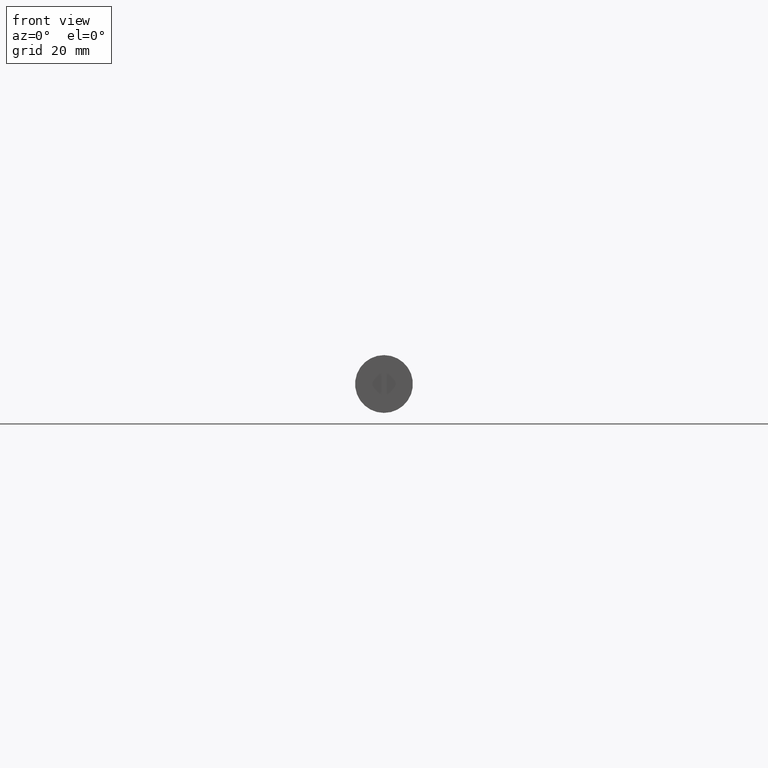
[diagram: clean part render]
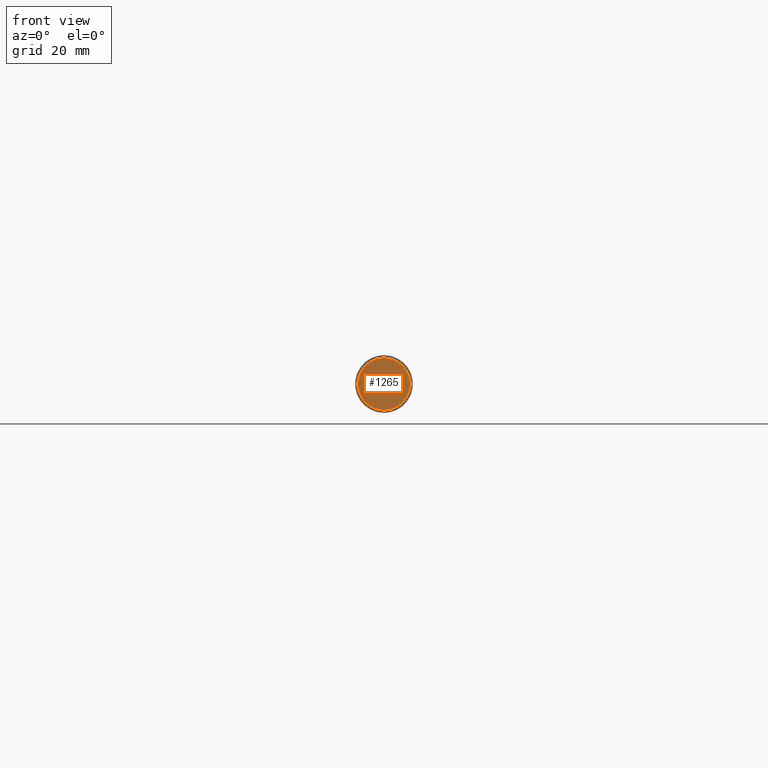
[diagram: same view with one face highlighted and labeled with its STEP entity id]
A machine part, front view. The second image highlights one B-rep face of the part: STEP entity #1265.
In plain terms, the highlighted planar face has unit normal (0, 1, 0).
Its self-contained STEP definition (entity closure, byte-faithful):
#27 = ORIENTED_EDGE ( 'NONE', *, *, #2682, .F. ) ;
#149 = CARTESIAN_POINT ( 'NONE',  ( -6.400000000000000400, 0.0000000000000000000, -2.112515728529184100E-015 ) ) ;
#286 = AXIS2_PLACEMENT_3D ( 'NONE', #4638, #2404, #4606 ) ;
#296 = CARTESIAN_POINT ( 'NONE',  ( 0.0000000000000000000, 0.0000000000000000000, 0.0000000000000000000 ) ) ;
#420 = FACE_BOUND ( 'NONE', #3859, .T. ) ;
#484 = DIRECTION ( 'NONE',  ( 0.0000000000000000000, 0.0000000000000000000, 1.000000000000000000 ) ) ;
#500 = EDGE_LOOP ( 'NONE', ( #3402, #27 ) ) ;
#504 = CIRCLE ( 'NONE', #2323, 0.4999999999999997800 ) ;
#508 = DIRECTION ( 'NONE',  ( -0.0000000000000000000, -1.000000000000000000, -0.0000000000000000000 ) ) ;
#525 = CARTESIAN_POINT ( 'NONE',  ( -6.400000000000000400, 0.0000000000000000000, 0.4999999999999977200 ) ) ;
#576 = VERTEX_POINT ( 'NONE', #1453 ) ;
#662 = AXIS2_PLACEMENT_3D ( 'NONE', #2499, #3705, #2135 ) ;
#727 = DIRECTION ( 'NONE',  ( 0.0000000000000000000, 1.000000000000000000, 0.0000000000000000000 ) ) ;
#829 = AXIS2_PLACEMENT_3D ( 'NONE', #296, #727, #2940 ) ;
#1004 = CARTESIAN_POINT ( 'NONE',  ( 0.0000000000000000000, 0.0000000000000000000, 0.0000000000000000000 ) ) ;
#1022 = CARTESIAN_POINT ( 'NONE',  ( 6.400000000000000400, 0.0000000000000000000, 0.5000000000000002200 ) ) ;
#1032 = EDGE_CURVE ( 'NONE', #576, #2442, #1664, .T. ) ;
#1136 = FACE_BOUND ( 'NONE', #500, .T. ) ;
#1237 = DIRECTION ( 'NONE',  ( -0.0000000000000000000, -1.000000000000000000, -0.0000000000000000000 ) ) ;
#1265 = ADVANCED_FACE ( 'NONE', ( #420, #3481, #1136 ), #4383, .F. ) ;
#1427 = EDGE_CURVE ( 'NONE', #4512, #3391, #3829, .T. ) ;
#1453 = CARTESIAN_POINT ( 'NONE',  ( 1.200153863164406500E-015, 0.0000000000000000000, 9.800000000000002500 ) ) ;
#1503 = CARTESIAN_POINT ( 'NONE',  ( -6.400000000000000400, 0.0000000000000000000, -0.5000000000000018900 ) ) ;
#1620 = VERTEX_POINT ( 'NONE', #3841 ) ;
#1635 = AXIS2_PLACEMENT_3D ( 'NONE', #2767, #508, #2459 ) ;
#1664 = CIRCLE ( 'NONE', #829, 9.800000000000002500 ) ;
#1671 = DIRECTION ( 'NONE',  ( -0.0000000000000000000, -1.000000000000000000, -0.0000000000000000000 ) ) ;
#1682 = EDGE_CURVE ( 'NONE', #3391, #4512, #504, .T. ) ;
#1755 = EDGE_CURVE ( 'NONE', #2442, #576, #3738, .T. ) ;
#2135 = DIRECTION ( 'NONE',  ( 0.0000000000000000000, 0.0000000000000000000, 1.000000000000000000 ) ) ;
#2249 = VERTEX_POINT ( 'NONE', #1022 ) ;
#2323 = AXIS2_PLACEMENT_3D ( 'NONE', #149, #1671, #3888 ) ;
#2373 = CIRCLE ( 'NONE', #1635, 0.5000000000000007800 ) ;
#2404 = DIRECTION ( 'NONE',  ( 0.0000000000000000000, 1.000000000000000000, 0.0000000000000000000 ) ) ;
#2442 = VERTEX_POINT ( 'NONE', #4439 ) ;
#2459 = DIRECTION ( 'NONE',  ( 0.0000000000000000000, 0.0000000000000000000, 1.000000000000000000 ) ) ;
#2499 = CARTESIAN_POINT ( 'NONE',  ( 6.400000000000000400, 0.0000000000000000000, -5.449678256205724700E-016 ) ) ;
#2682 = EDGE_CURVE ( 'NONE', #1620, #2249, #2373, .T. ) ;
#2767 = CARTESIAN_POINT ( 'NONE',  ( 6.400000000000000400, 0.0000000000000000000, -5.449678256205724700E-016 ) ) ;
#2940 = DIRECTION ( 'NONE',  ( 0.0000000000000000000, 0.0000000000000000000, 1.000000000000000000 ) ) ;
#3204 = EDGE_CURVE ( 'NONE', #2249, #1620, #3884, .T. ) ;
#3391 = VERTEX_POINT ( 'NONE', #1503 ) ;
#3402 = ORIENTED_EDGE ( 'NONE', *, *, #3204, .F. ) ;
#3412 = ORIENTED_EDGE ( 'NONE', *, *, #1032, .F. ) ;
#3447 = ORIENTED_EDGE ( 'NONE', *, *, #1755, .F. ) ;
#3474 = CARTESIAN_POINT ( 'NONE',  ( -6.400000000000000400, 0.0000000000000000000, -2.112515728529184100E-015 ) ) ;
#3481 = FACE_OUTER_BOUND ( 'NONE', #4666, .T. ) ;
#3657 = DIRECTION ( 'NONE',  ( 0.0000000000000000000, 1.000000000000000000, 0.0000000000000000000 ) ) ;
#3705 = DIRECTION ( 'NONE',  ( -0.0000000000000000000, -1.000000000000000000, -0.0000000000000000000 ) ) ;
#3738 = CIRCLE ( 'NONE', #286, 9.800000000000002500 ) ;
#3829 = CIRCLE ( 'NONE', #4228, 0.4999999999999997800 ) ;
#3841 = CARTESIAN_POINT ( 'NONE',  ( 6.400000000000000400, 0.0000000000000000000, -0.5000000000000013300 ) ) ;
#3844 = ORIENTED_EDGE ( 'NONE', *, *, #1427, .F. ) ;
#3859 = EDGE_LOOP ( 'NONE', ( #3844, #4041 ) ) ;
#3884 = CIRCLE ( 'NONE', #662, 0.5000000000000007800 ) ;
#3888 = DIRECTION ( 'NONE',  ( 0.0000000000000000000, 0.0000000000000000000, 1.000000000000000000 ) ) ;
#4041 = ORIENTED_EDGE ( 'NONE', *, *, #1682, .F. ) ;
#4228 = AXIS2_PLACEMENT_3D ( 'NONE', #3474, #1237, #484 ) ;
#4383 = PLANE ( 'NONE',  #4547 ) ;
#4439 = CARTESIAN_POINT ( 'NONE',  ( 0.0000000000000000000, 0.0000000000000000000, -9.800000000000002500 ) ) ;
#4512 = VERTEX_POINT ( 'NONE', #525 ) ;
#4547 = AXIS2_PLACEMENT_3D ( 'NONE', #1004, #3657, #4793 ) ;
#4606 = DIRECTION ( 'NONE',  ( 0.0000000000000000000, 0.0000000000000000000, 1.000000000000000000 ) ) ;
#4638 = CARTESIAN_POINT ( 'NONE',  ( 0.0000000000000000000, 0.0000000000000000000, 0.0000000000000000000 ) ) ;
#4666 = EDGE_LOOP ( 'NONE', ( #3447, #3412 ) ) ;
#4793 = DIRECTION ( 'NONE',  ( 0.0000000000000000000, -0.0000000000000000000, 1.000000000000000000 ) ) ;